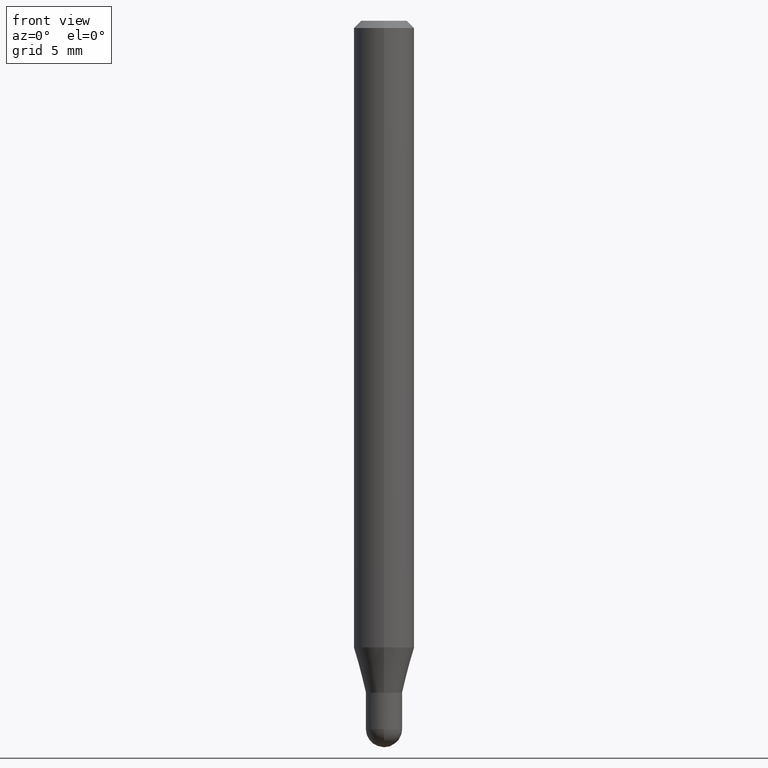
[diagram: clean part render]
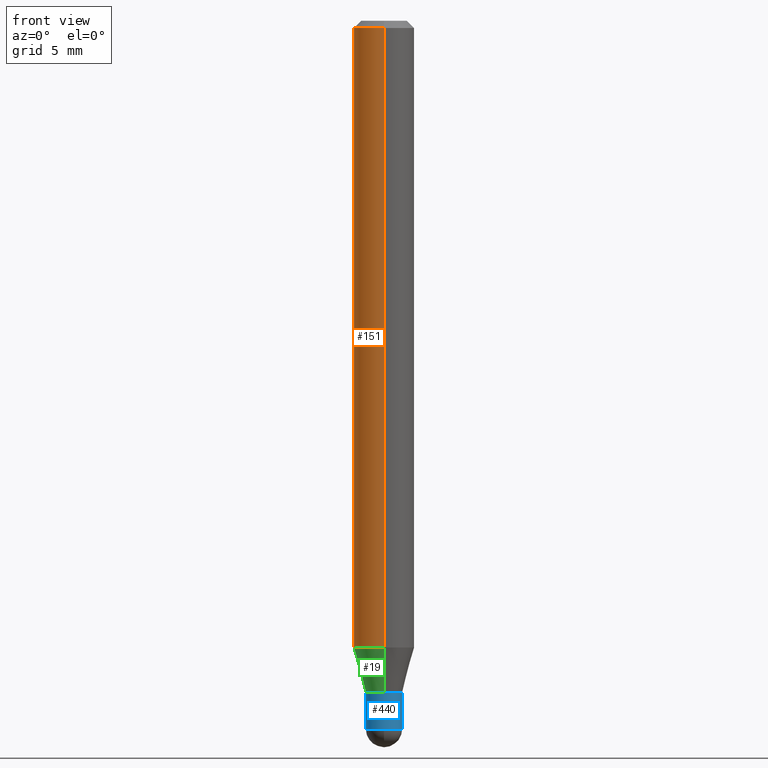
[diagram: same view with three faces highlighted in distinct colors, each labeled with its STEP entity id]
A machine part, front view with three faces highlighted in distinct colors.
Their STEP definitions:

[orange] entity #151 — the highlighted cylindrical surface (edge-blend (fillet) strip) has radius 1.5875 mm, axis along (-0, 0, 1).
#13 = LINE ( 'NONE', #284, #219 ) ;
#14 = CYLINDRICAL_SURFACE ( 'NONE', #144, 0.06250000000000000000 ) ;
#20 = DIRECTION ( 'NONE',  ( -6.982962677686265922E-15, -1.000000000000000000, 3.491509382071719450E-15 ) ) ;
#55 = DIRECTION ( 'NONE',  ( -2.445449223703287346E-29, 3.491509382071719450E-15, 1.000000000000000000 ) ) ;
#63 = VERTEX_POINT ( 'NONE', #401 ) ;
#90 = AXIS2_PLACEMENT_3D ( 'NONE', #101, #289, #134 ) ;
#96 = DIRECTION ( 'NONE',  ( -2.445449223703287346E-29, 3.491509382071719844E-15, 1.000000000000000000 ) ) ;
#101 = CARTESIAN_POINT ( 'NONE',  ( 3.668173835554947116E-31, -5.237264073107601830E-17, -0.01500000000000006710 ) ) ;
#102 = ORIENTED_EDGE ( 'NONE', *, *, #202, .F. ) ;
#107 = ORIENTED_EDGE ( 'NONE', *, *, #332, .F. ) ;
#126 = CARTESIAN_POINT ( 'NONE',  ( -4.364351673553916201E-16, -0.06250000000000000000, 2.182193363794824656E-16 ) ) ;
#134 = DIRECTION ( 'NONE',  ( -6.982962677686265922E-15, -1.000000000000000000, 3.483106191921935554E-15 ) ) ;
#144 = AXIS2_PLACEMENT_3D ( 'NONE', #172, #55, #20 ) ;
#151 = ADVANCED_FACE ( 'NONE', ( #287 ), #14, .T. ) ;
#159 = CARTESIAN_POINT ( 'NONE',  ( 3.164897279133557354E-29, -4.518707007399648771E-15, -1.294198729810782211 ) ) ;
#172 = CARTESIAN_POINT ( 'NONE',  ( 0.000000000000000000, 0.000000000000000000, 0.000000000000000000 ) ) ;
#176 = EDGE_CURVE ( 'NONE', #191, #63, #446, .T. ) ;
#184 = VERTEX_POINT ( 'NONE', #363 ) ;
#191 = VERTEX_POINT ( 'NONE', #253 ) ;
#197 = DIRECTION ( 'NONE',  ( -6.982962677686265922E-15, -1.000000000000000000, 4.370956789862821150E-15 ) ) ;
#202 = EDGE_CURVE ( 'NONE', #381, #184, #13, .T. ) ;
#204 = CIRCLE ( 'NONE', #90, 0.06250000000000000000 ) ;
#211 = CIRCLE ( 'NONE', #254, 0.06250000000000000000 ) ;
#219 = VECTOR ( 'NONE', #407, 39.37007874015748143 ) ;
#253 = CARTESIAN_POINT ( 'NONE',  ( -4.364351673553602629E-16, -0.06250000000000455191, -1.294198729810781989 ) ) ;
#254 = AXIS2_PLACEMENT_3D ( 'NONE', #159, #465, #197 ) ;
#262 = CARTESIAN_POINT ( 'NONE',  ( 4.440892098500938748E-16, 0.06249999999999544809, -1.294198729810782433 ) ) ;
#284 = CARTESIAN_POINT ( 'NONE',  ( 4.440892098500625669E-16, 0.06250000000000000000, -2.182193363794824656E-16 ) ) ;
#287 = FACE_OUTER_BOUND ( 'NONE', #498, .T. ) ;
#289 = DIRECTION ( 'NONE',  ( -2.445449223703287346E-29, 3.491509382071719450E-15, 1.000000000000000000 ) ) ;
#326 = VECTOR ( 'NONE', #96, 39.37007874015748143 ) ;
#332 = EDGE_CURVE ( 'NONE', #184, #63, #204, .T. ) ;
#351 = ORIENTED_EDGE ( 'NONE', *, *, #435, .T. ) ;
#363 = CARTESIAN_POINT ( 'NONE',  ( 4.440892098500944664E-16, 0.06249999999999995143, -0.01500000000000028394 ) ) ;
#381 = VERTEX_POINT ( 'NONE', #262 ) ;
#401 = CARTESIAN_POINT ( 'NONE',  ( -4.364351673553912750E-16, -0.06250000000000005551, -0.01499999999999984852 ) ) ;
#407 = DIRECTION ( 'NONE',  ( -2.445449223703287346E-29, 3.491509382071719844E-15, 1.000000000000000000 ) ) ;
#435 = EDGE_CURVE ( 'NONE', #381, #191, #211, .T. ) ;
#446 = LINE ( 'NONE', #126, #326 ) ;
#458 = ORIENTED_EDGE ( 'NONE', *, *, #176, .T. ) ;
#465 = DIRECTION ( 'NONE',  ( -2.445449223703287346E-29, 3.491509382071719450E-15, 1.000000000000000000 ) ) ;
#498 = EDGE_LOOP ( 'NONE', ( #102, #351, #458, #107 ) ) ;

[blue] entity #440 — the highlighted cylindrical surface (edge-blend (fillet) strip) has radius 0.9525 mm, axis along (-0, 0, 1).
#11 = ORIENTED_EDGE ( 'NONE', *, *, #240, .F. ) ;
#22 = DIRECTION ( 'NONE',  ( -2.445468806185136597E-29, 3.491481338843145583E-15, 1.000000000000000000 ) ) ;
#28 = VERTEX_POINT ( 'NONE', #115 ) ;
#36 = AXIS2_PLACEMENT_3D ( 'NONE', #47, #194, #429 ) ;
#41 = FACE_OUTER_BOUND ( 'NONE', #143, .T. ) ;
#47 = CARTESIAN_POINT ( 'NONE',  ( 0.000000000000000000, 0.000000000000000000, 0.000000000000000000 ) ) ;
#48 = CIRCLE ( 'NONE', #252, 0.03749999999999999861 ) ;
#56 = VECTOR ( 'NONE', #343, 39.37007874015748143 ) ;
#69 = ORIENTED_EDGE ( 'NONE', *, *, #274, .T. ) ;
#98 = VERTEX_POINT ( 'NONE', #124 ) ;
#99 = CARTESIAN_POINT ( 'NONE',  ( 3.576498129045762161E-29, -5.106291458058100676E-15, -1.462500000000000133 ) ) ;
#104 = CIRCLE ( 'NONE', #436, 0.03749999999999999861 ) ;
#109 = VERTEX_POINT ( 'NONE', #207 ) ;
#114 = CYLINDRICAL_SURFACE ( 'NONE', #36, 0.03749999999999999861 ) ;
#115 = CARTESIAN_POINT ( 'NONE',  ( 0.03749999999999999861, -5.106291458058100676E-15, -1.387500000000000178 ) ) ;
#122 = CIRCLE ( 'NONE', #230, 0.03749999999999999861 ) ;
#124 = CARTESIAN_POINT ( 'NONE',  ( -0.03749999999999999861, -4.708907381941446552E-15, -1.462500000000000133 ) ) ;
#143 = EDGE_LOOP ( 'NONE', ( #462, #69, #324, #466, #11 ) ) ;
#145 = VECTOR ( 'NONE', #163, 39.37007874015748143 ) ;
#148 = VERTEX_POINT ( 'NONE', #371 ) ;
#163 = DIRECTION ( 'NONE',  ( -2.445468806185136877E-29, 3.491481338843145188E-15, 1.000000000000000000 ) ) ;
#174 = DIRECTION ( 'NONE',  ( 1.000000000000000000, -6.982962677686268288E-15, 0.000000000000000000 ) ) ;
#180 = CARTESIAN_POINT ( 'NONE',  ( 3.393087968581877252E-29, -4.844430357644865674E-15, -1.387500000000000178 ) ) ;
#182 = EDGE_CURVE ( 'NONE', #109, #384, #104, .T. ) ;
#194 = DIRECTION ( 'NONE',  ( -2.445468806185136597E-29, 3.491481338843145583E-15, 1.000000000000000000 ) ) ;
#206 = CARTESIAN_POINT ( 'NONE',  ( 3.576498129045762161E-29, -5.106291458058100676E-15, -1.462500000000000133 ) ) ;
#207 = CARTESIAN_POINT ( 'NONE',  ( -2.618611004131994043E-16, -0.03750000000000513339, -1.462500000000000133 ) ) ;
#218 = EDGE_CURVE ( 'NONE', #98, #148, #376, .T. ) ;
#220 = CARTESIAN_POINT ( 'NONE',  ( 0.03749999999999999861, -5.237222008264718177E-15, -1.462500000000000133 ) ) ;
#230 = AXIS2_PLACEMENT_3D ( 'NONE', #180, #22, #380 ) ;
#240 = EDGE_CURVE ( 'NONE', #148, #28, #122, .T. ) ;
#252 = AXIS2_PLACEMENT_3D ( 'NONE', #99, #302, #259 ) ;
#259 = DIRECTION ( 'NONE',  ( 1.000000000000000000, -6.982962677686268288E-15, 0.000000000000000000 ) ) ;
#274 = EDGE_CURVE ( 'NONE', #98, #109, #48, .T. ) ;
#302 = DIRECTION ( 'NONE',  ( -2.445468806185136597E-29, 3.491481338843145583E-15, 1.000000000000000000 ) ) ;
#322 = DIRECTION ( 'NONE',  ( -2.445468806185136597E-29, 3.491481338843145583E-15, 1.000000000000000000 ) ) ;
#324 = ORIENTED_EDGE ( 'NONE', *, *, #182, .T. ) ;
#343 = DIRECTION ( 'NONE',  ( -2.445468806185136877E-29, 3.491481338843145188E-15, 1.000000000000000000 ) ) ;
#358 = LINE ( 'NONE', #392, #145 ) ;
#371 = CARTESIAN_POINT ( 'NONE',  ( -0.03749999999999999861, -4.708907381941446552E-15, -1.387500000000000178 ) ) ;
#376 = LINE ( 'NONE', #411, #56 ) ;
#380 = DIRECTION ( 'NONE',  ( 1.000000000000000000, -6.982962677686268288E-15, 0.000000000000000000 ) ) ;
#384 = VERTEX_POINT ( 'NONE', #220 ) ;
#392 = CARTESIAN_POINT ( 'NONE',  ( 0.03749999999999999861, -2.618611004132350016E-16, 1.828566290923475922E-30 ) ) ;
#405 = EDGE_CURVE ( 'NONE', #384, #28, #358, .T. ) ;
#411 = CARTESIAN_POINT ( 'NONE',  ( -0.03749999999999999861, 2.664535259100375598E-16, -1.844600658845589808E-30 ) ) ;
#429 = DIRECTION ( 'NONE',  ( 1.000000000000000000, -6.982962677686266711E-15, 4.876176775795935793E-29 ) ) ;
#436 = AXIS2_PLACEMENT_3D ( 'NONE', #206, #322, #174 ) ;
#440 = ADVANCED_FACE ( 'NONE', ( #41 ), #114, .T. ) ;
#462 = ORIENTED_EDGE ( 'NONE', *, *, #218, .F. ) ;
#466 = ORIENTED_EDGE ( 'NONE', *, *, #405, .T. ) ;

[green] entity #19 — the highlighted conical surface has half-angle 15 deg.
#9 = ORIENTED_EDGE ( 'NONE', *, *, #245, .T. ) ;
#16 = CONICAL_SURFACE ( 'NONE', #468, 0.03750000000000018596, 0.2617993877991581231 ) ;
#19 = ADVANCED_FACE ( 'NONE', ( #118 ), #16, .T. ) ;
#42 = CARTESIAN_POINT ( 'NONE',  ( 3.393060797888311038E-29, -4.844469267624512368E-15, -1.387500000000000178 ) ) ;
#53 = EDGE_CURVE ( 'NONE', #77, #381, #403, .T. ) ;
#77 = VERTEX_POINT ( 'NONE', #280 ) ;
#80 = DIRECTION ( 'NONE',  ( -6.982962677686265922E-15, -1.000000000000000000, 0.000000000000000000 ) ) ;
#83 = VECTOR ( 'NONE', #320, 39.37007874015748143 ) ;
#110 = DIRECTION ( 'NONE',  ( -2.445449223703287346E-29, 3.491509382071719450E-15, 1.000000000000000000 ) ) ;
#118 = FACE_OUTER_BOUND ( 'NONE', #276, .T. ) ;
#136 = CARTESIAN_POINT ( 'NONE',  ( -2.618611004132023625E-16, -0.03750000000000503625, -1.387500000000000178 ) ) ;
#159 = CARTESIAN_POINT ( 'NONE',  ( 3.164897279133557354E-29, -4.518707007399648771E-15, -1.294198729810782211 ) ) ;
#160 = DIRECTION ( 'NONE',  ( -2.445449223703287346E-29, 3.491509382071719450E-15, 1.000000000000000000 ) ) ;
#191 = VERTEX_POINT ( 'NONE', #253 ) ;
#197 = DIRECTION ( 'NONE',  ( -6.982962677686265922E-15, -1.000000000000000000, 4.370956789862821150E-15 ) ) ;
#211 = CIRCLE ( 'NONE', #254, 0.06250000000000000000 ) ;
#243 = CARTESIAN_POINT ( 'NONE',  ( 2.664535259100728121E-16, 0.03749999999999534261, -1.387500000000000178 ) ) ;
#245 = EDGE_CURVE ( 'NONE', #77, #295, #456, .T. ) ;
#253 = CARTESIAN_POINT ( 'NONE',  ( -4.364351673553602629E-16, -0.06250000000000455191, -1.294198729810781989 ) ) ;
#254 = AXIS2_PLACEMENT_3D ( 'NONE', #159, #465, #197 ) ;
#256 = ORIENTED_EDGE ( 'NONE', *, *, #342, .T. ) ;
#257 = CARTESIAN_POINT ( 'NONE',  ( 3.393060797888311038E-29, -4.844469267624512368E-15, -1.387500000000000178 ) ) ;
#262 = CARTESIAN_POINT ( 'NONE',  ( 4.440892098500938748E-16, 0.06249999999999544809, -1.294198729810782433 ) ) ;
#276 = EDGE_LOOP ( 'NONE', ( #301, #9, #256, #422 ) ) ;
#280 = CARTESIAN_POINT ( 'NONE',  ( 3.552713678800835899E-16, 0.03749999999999534261, -1.387500000000000178 ) ) ;
#283 = AXIS2_PLACEMENT_3D ( 'NONE', #257, #110, #383 ) ;
#293 = LINE ( 'NONE', #296, #365 ) ;
#295 = VERTEX_POINT ( 'NONE', #136 ) ;
#296 = CARTESIAN_POINT ( 'NONE',  ( -2.618611004132023625E-16, -0.03750000000000503625, -1.387500000000000178 ) ) ;
#301 = ORIENTED_EDGE ( 'NONE', *, *, #53, .F. ) ;
#320 = DIRECTION ( 'NONE',  ( 1.839019923739654352E-15, 0.2588190451025325634, 0.9659258262890650926 ) ) ;
#342 = EDGE_CURVE ( 'NONE', #295, #191, #293, .T. ) ;
#365 = VECTOR ( 'NONE', #457, 39.37007874015748143 ) ;
#381 = VERTEX_POINT ( 'NONE', #262 ) ;
#383 = DIRECTION ( 'NONE',  ( -6.982962677686265922E-15, -1.000000000000000000, 0.000000000000000000 ) ) ;
#403 = LINE ( 'NONE', #243, #83 ) ;
#422 = ORIENTED_EDGE ( 'NONE', *, *, #435, .F. ) ;
#435 = EDGE_CURVE ( 'NONE', #381, #191, #211, .T. ) ;
#456 = CIRCLE ( 'NONE', #283, 0.03750000000000018596 ) ;
#457 = DIRECTION ( 'NONE',  ( -1.807323732225383387E-15, -0.2588190451025257910, 0.9659258262890669799 ) ) ;
#465 = DIRECTION ( 'NONE',  ( -2.445449223703287346E-29, 3.491509382071719450E-15, 1.000000000000000000 ) ) ;
#468 = AXIS2_PLACEMENT_3D ( 'NONE', #42, #160, #80 ) ;